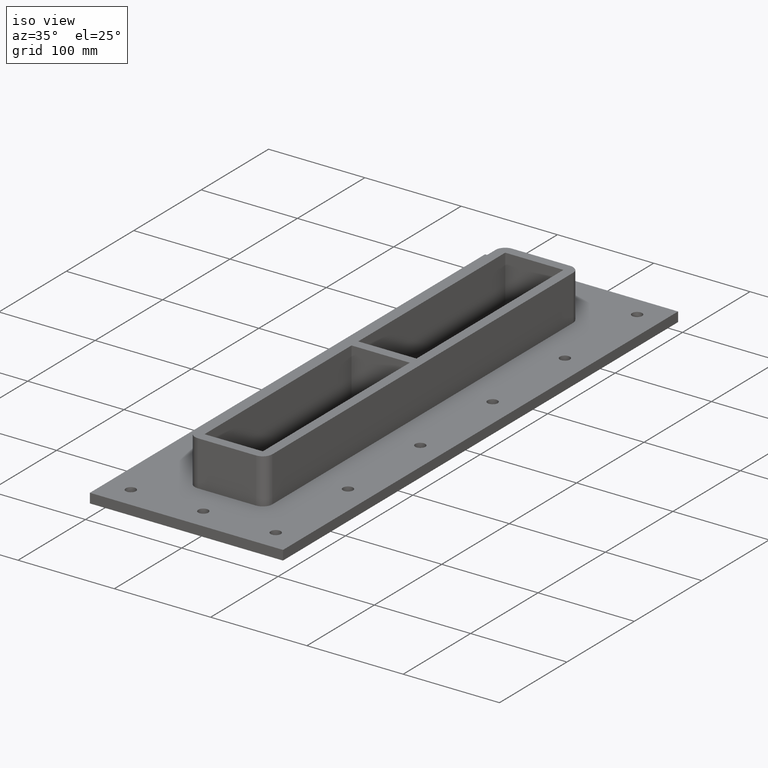
[diagram: clean part render]
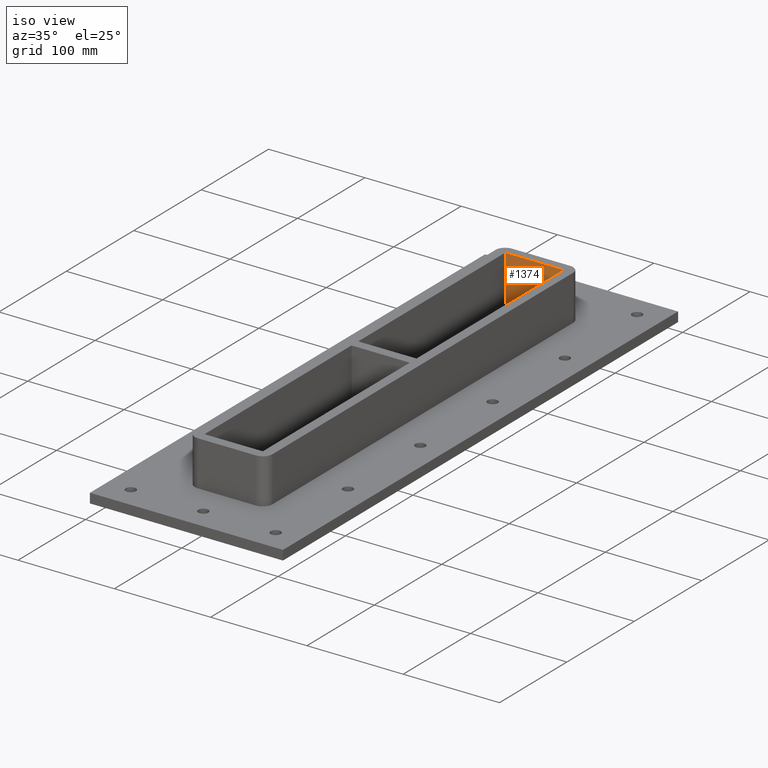
[diagram: same view with one face highlighted and labeled with its STEP entity id]
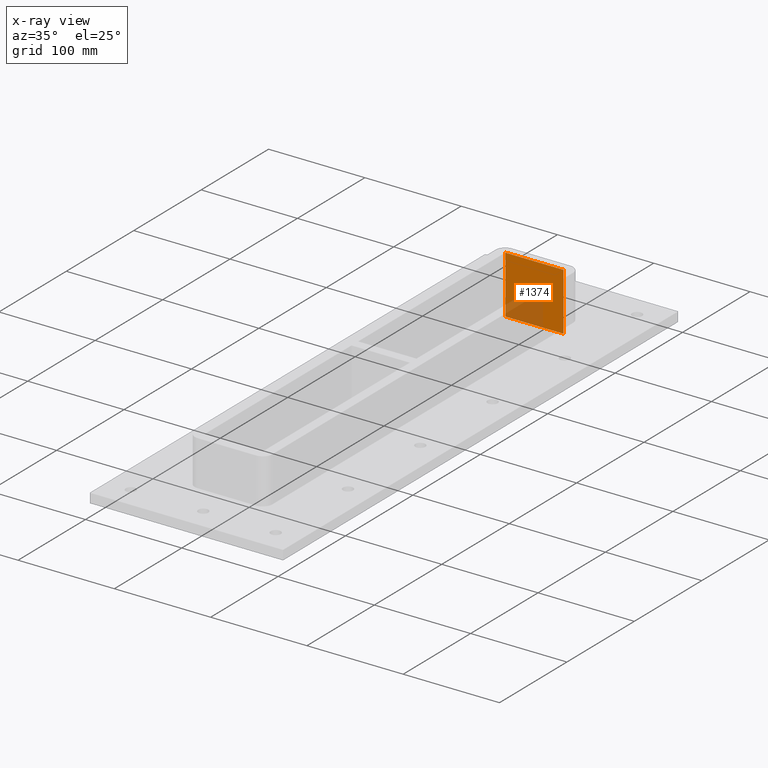
[diagram: x-ray of the same camera — body ghosted, the highlighted face saturated]
A machine part, iso view. The second image highlights one B-rep face of the part: STEP entity #1374.
The next image is the same camera in x-ray: the body ghosted, the highlighted face saturated — about 28% of this face is hidden behind the body in this view.
In plain terms, the highlighted planar face has unit normal (0, 1, 0).
Its self-contained STEP definition (entity closure, byte-faithful):
#1102=CARTESIAN_POINT('',(-30.250000000000089,222.99999999999761,-30.0));
#1103=VERTEX_POINT('',#1102);
#1120=CARTESIAN_POINT('',(30.24999999999995,222.99999999999761,-30.0));
#1121=VERTEX_POINT('',#1120);
#1128=CARTESIAN_POINT('',(30.24999999999995,222.99999999999761,-30.0));
#1129=DIRECTION('',(-1.0,0.0,0.0));
#1130=VECTOR('',#1129,60.500000000000036);
#1131=LINE('',#1128,#1130);
#1132=EDGE_CURVE('',#1121,#1103,#1131,.T.);
#1285=CARTESIAN_POINT('',(-30.250000000000089,222.99999999999761,30.0));
#1286=VERTEX_POINT('',#1285);
#1287=CARTESIAN_POINT('',(-30.250000000000089,222.99999999999761,30.0));
#1288=DIRECTION('',(0.0,0.0,-1.0));
#1289=VECTOR('',#1288,60.0);
#1290=LINE('',#1287,#1289);
#1291=EDGE_CURVE('',#1286,#1103,#1290,.T.);
#1341=CARTESIAN_POINT('',(30.24999999999995,222.99999999999761,30.0));
#1342=VERTEX_POINT('',#1341);
#1349=CARTESIAN_POINT('',(30.24999999999995,222.99999999999761,30.0));
#1350=DIRECTION('',(0.0,0.0,-1.0));
#1351=VECTOR('',#1350,60.0);
#1352=LINE('',#1349,#1351);
#1353=EDGE_CURVE('',#1342,#1121,#1352,.T.);
#1358=CARTESIAN_POINT('',(-30.250000000000092,222.99999999999761,30.0));
#1359=DIRECTION('',(0.0,1.0,0.0));
#1360=DIRECTION('',(1.0,0.0,0.0));
#1361=AXIS2_PLACEMENT_3D('',#1358,#1359,#1360);
#1362=PLANE('',#1361);
#1363=ORIENTED_EDGE('',*,*,#1132,.F.);
#1364=ORIENTED_EDGE('',*,*,#1353,.F.);
#1365=CARTESIAN_POINT('',(-30.250000000000085,222.99999999999761,30.0));
#1366=DIRECTION('',(1.0,0.0,0.0));
#1367=VECTOR('',#1366,60.500000000000036);
#1368=LINE('',#1365,#1367);
#1369=EDGE_CURVE('',#1286,#1342,#1368,.T.);
#1370=ORIENTED_EDGE('',*,*,#1369,.F.);
#1371=ORIENTED_EDGE('',*,*,#1291,.T.);
#1372=EDGE_LOOP('',(#1363,#1364,#1370,#1371));
#1373=FACE_OUTER_BOUND('',#1372,.T.);
#1374=ADVANCED_FACE('',(#1373),#1362,.F.);